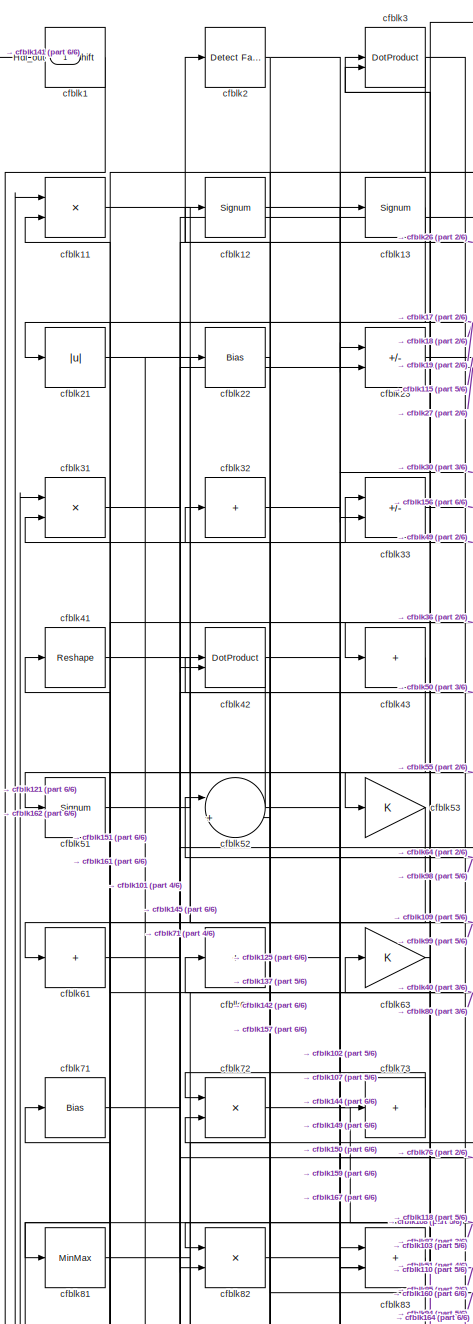
[diagram: root canvas - part 1/6, top left region]
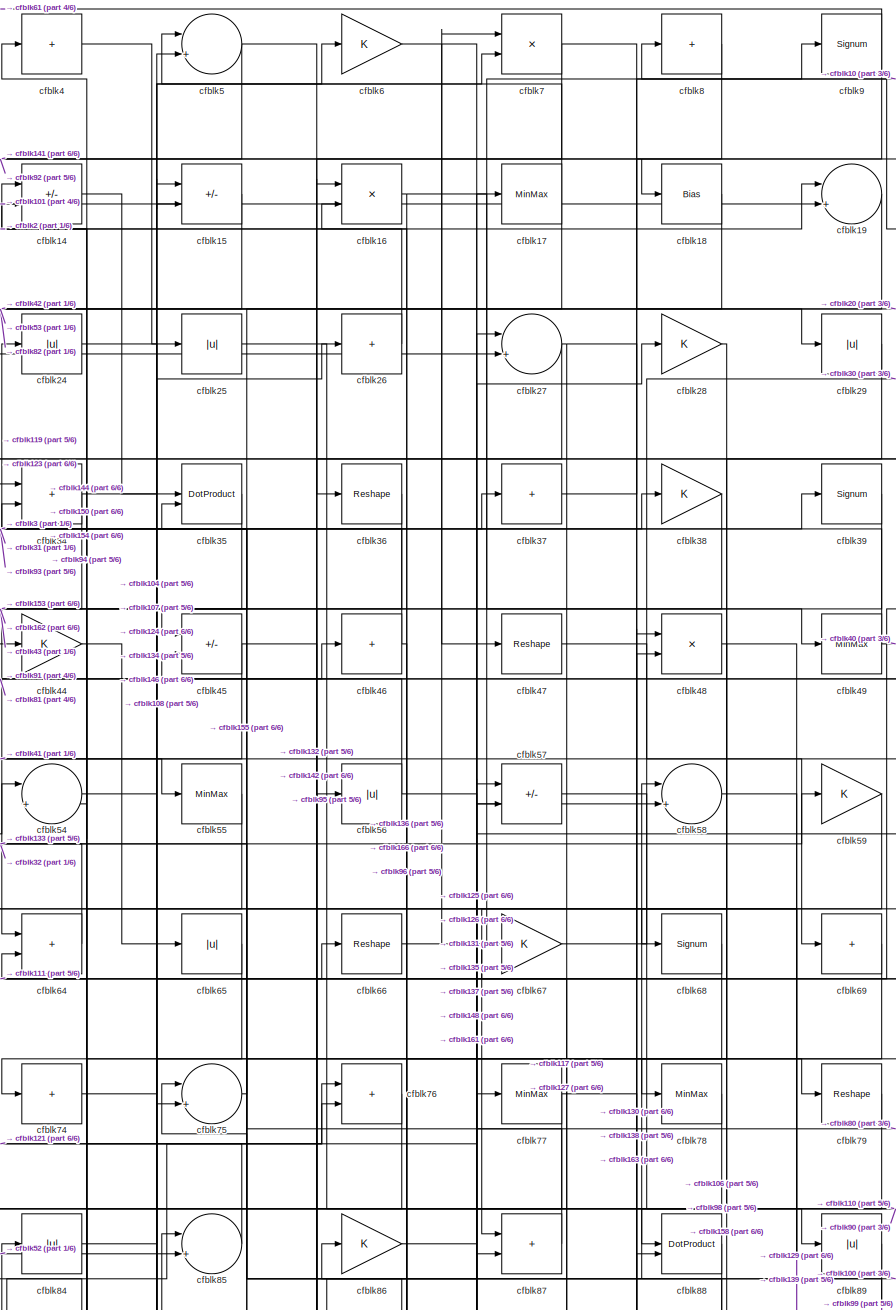
[diagram: root canvas - part 2/6, top center region]
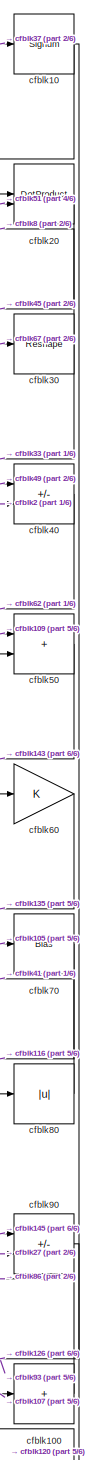
[diagram: root canvas - part 3/6, top right region]
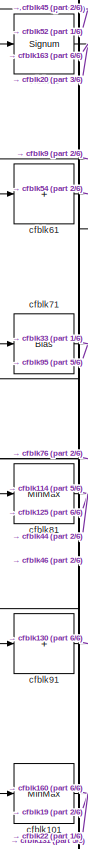
[diagram: root canvas - part 4/6, middle left region]
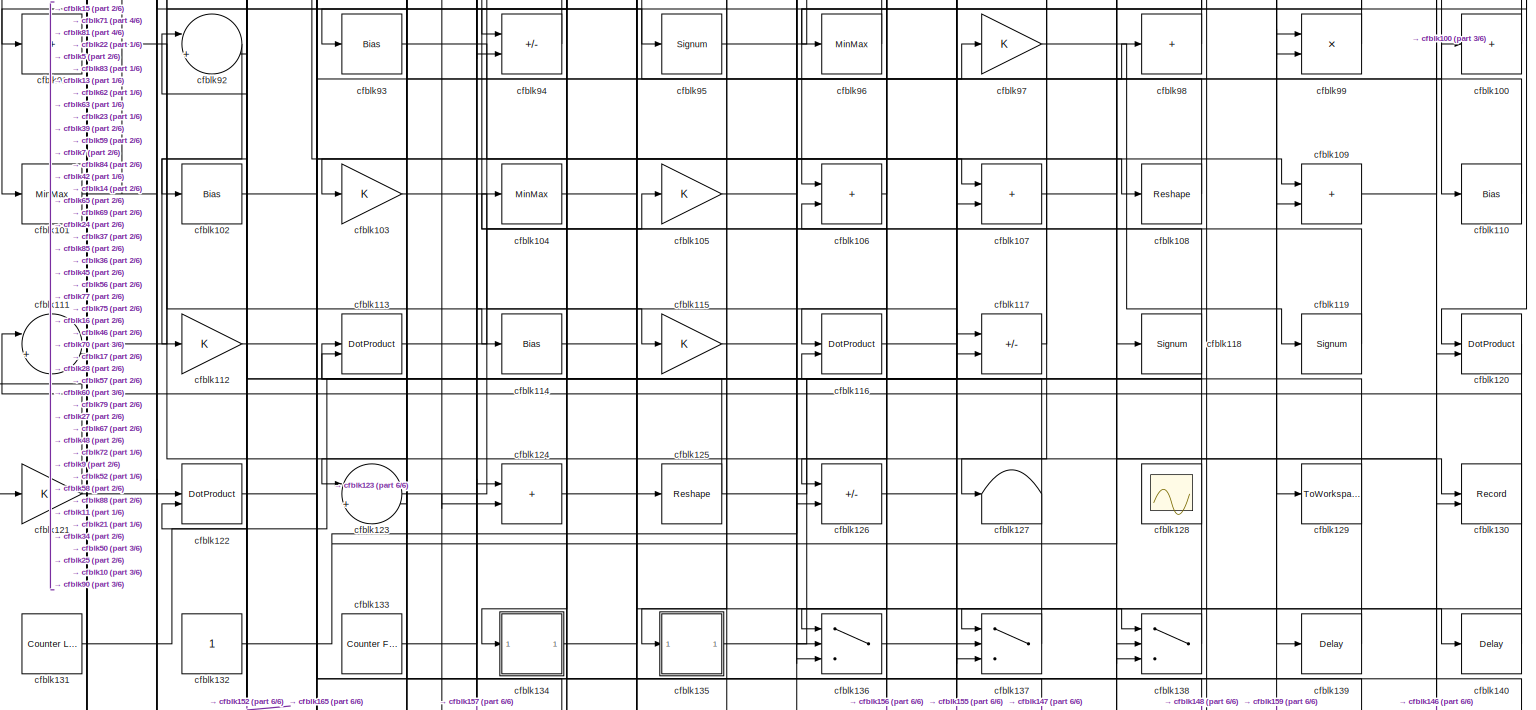
[diagram: root canvas - part 5/6, full width, bottom band]
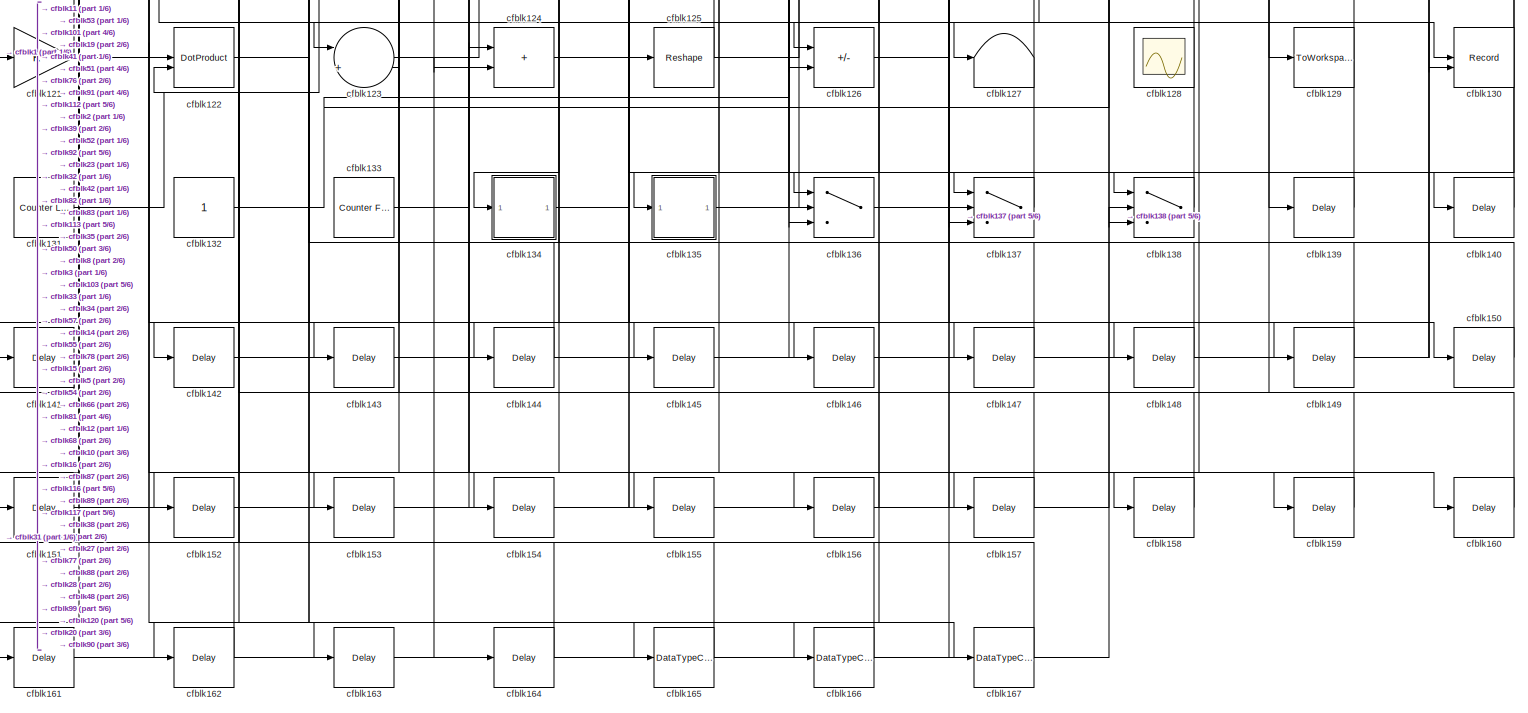
[diagram: root canvas - part 6/6, full width, bottom band]
MODEL slx_37937b42022f
KIND model
CONFIG AbsTol = auto
CONFIG EnableMultiTasking = off
CONFIG FixedStep = auto
CONFIG MaxStep = auto
CONFIG MinStep = auto
CONFIG RelTol = 1e-3
CONFIG SampleTimeConstraint = Unconstrained
CONFIG SolverName = VariableStepAuto
CONFIG StartTime = 0.0
CONFIG StopTime = 10.0
BLOCK [Outport] Hdl_out
  OutDataTypeStr = uint8
BLOCK [ArithShift] cfblk1
  BitShiftNumber = 8
  InputPortMap = u0
BLOCK [Signum] cfblk10
BLOCK [Sum] cfblk100
  IconShape = rectangular
  Inputs = +
  OutDataTypeStr = uint8
BLOCK [MinMax] cfblk101
  OutDataTypeStr = uint8
BLOCK [Bias] cfblk102
  Bias = 0.0
  SaturateOnIntegerOverflow = off
BLOCK [Gain] cfblk103
  OutDataTypeStr = uint8
BLOCK [MinMax] cfblk104
  OutDataTypeStr = uint8
BLOCK [Gain] cfblk105
  OutDataTypeStr = uint8
BLOCK [Sum] cfblk106
  IconShape = rectangular
  OutDataTypeStr = uint8
BLOCK [Sum] cfblk107
  IconShape = rectangular
  OutDataTypeStr = uint8
BLOCK [Reshape] cfblk108
BLOCK [Sum] cfblk109
  IconShape = rectangular
  OutDataTypeStr = uint8
BLOCK [Product] cfblk11
  Inputs = */
  OutDataTypeStr = uint8
  RndMeth = Zero
  SaturateOnIntegerOverflow = on
BLOCK [Bias] cfblk110
  Bias = 0.0
  SaturateOnIntegerOverflow = off
BLOCK [Sum] cfblk111
  Inputs = |++
  OutDataTypeStr = uint8
BLOCK [Gain] cfblk112
  OutDataTypeStr = uint8
BLOCK [DotProduct] cfblk113
  OutDataTypeStr = uint8
BLOCK [Bias] cfblk114
  Bias = 0.0
  SaturateOnIntegerOverflow = off
BLOCK [Gain] cfblk115
  OutDataTypeStr = uint8
BLOCK [DotProduct] cfblk116
  OutDataTypeStr = uint8
BLOCK [Sum] cfblk117
  IconShape = rectangular
  Inputs = +-
  OutDataTypeStr = uint8
BLOCK [Signum] cfblk118
BLOCK [Signum] cfblk119
BLOCK [Signum] cfblk12
BLOCK [DotProduct] cfblk120
  OutDataTypeStr = uint8
BLOCK [Gain] cfblk121
  OutDataTypeStr = uint8
BLOCK [DotProduct] cfblk122
  OutDataTypeStr = uint8
BLOCK [Sum] cfblk123
  Inputs = |++
  OutDataTypeStr = uint8
BLOCK [Sum] cfblk124
  IconShape = rectangular
  OutDataTypeStr = uint8
BLOCK [Reshape] cfblk125
BLOCK [Sum] cfblk126
  IconShape = rectangular
  Inputs = +-
  OutDataTypeStr = uint8
BLOCK [Terminator] cfblk127
BLOCK [Scope] cfblk128
  Floating = on
  NumInputPorts = 1
  ScopeSpecificationString = Simulink.scopes.TimeScopeBlockCfg('CurrentConfiguration', extmgr.ConfigurationSet(extmgr.Configuration('Core','General UI',true,'FigureColor',[0.156862745098039 0.156862745098039 0.156862745098039]),extmgr.Configuration('Core','Source UI',true),extmgr.Configuration('Sources','WiredSimulink',true,'DataLoggingVariableName','ScopeData1','DataLoggingSaveFormat','StructureWithTime','DataLoggingLimitDat...<+2713ch>
BLOCK [ToWorkspace] cfblk129
  MaxDataPoints = inf
  SampleTime = -1
  SaveFormat = Timeseries
  VariableName = simout
BLOCK [Signum] cfblk13
BLOCK [Record] cfblk130
  CompatibilityTag = XY
  FileSettingsInternal = {"entries":[{"content":{"excelSettings":{"content":{},"type":"Streamout.ExcelSettings"}},"type":"Streamout.FileSettingStorage","uuid":""}],"packageUris":["http:\/\/schema.mathworks.com\/mf0\/streamout_blocks\/R2020a"],"version":"1.0"}
  Layout = [1 1]
  SignalsInternal = {"entries":[{"content":{"signals":[{"content":{"blockPath":[],"dimensions":[1],"domain":"","lineColor":"#a2142f","plots":[1],"port":1,"signalID":55582,"signalName":"cfblk91"},"type":"RecordBlkView.Signal","uuid":""},{"content":{"blockPath":[],"dimensions":[1],"domain":"","lineColor":"#139fff","plots":[1],"port":2,"signalID":55585,"signalName":"cfblk77"},"type":"RecordBlkView.Signal","uuid":""}]},"...<+142ch>
  VisualizationBindings = {"xyplotplugin":{"info":[{"series":[{"bindingParametersList":[{"parameter":"X-Axis","signalID":55582,"signalName":"cfblk91"},{"parameter":"Y-Axis","signalID":55585,"signalName":"cfblk77"}],"seriesID":19874}],"subplotID":1}]}}
  st = -1
BLOCK [Reference] cfblk131  REF=hdlsllib/Sources/Counter
Limited
  SourceBlock = hdlsllib/Sources/Counter\nLimited
  SourceType = Counter Limited
BLOCK [Constant] cfblk132
  OutDataTypeStr = uint8
  SampleTime = -1
BLOCK [Reference] cfblk133  REF=hdlsllib/Sources/Counter
Free-Running
  SourceBlock = hdlsllib/Sources/Counter\nFree-Running
  SourceType = Counter Free-Running
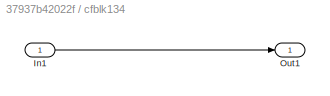
BLOCK [SubSystem] cfblk134
  LibrarySourceBlock = hdlsllib/Ports &\nSubsystems/Subsystem
BLOCK [Inport] cfblk134/In1
BLOCK [Outport] cfblk134/Out1
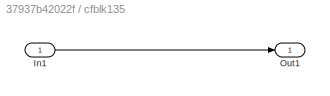
BLOCK [SubSystem] cfblk135
  LibrarySourceBlock = hdlsllib/Ports &\nSubsystems/Subsystem
BLOCK [Inport] cfblk135/In1
BLOCK [Outport] cfblk135/Out1
BLOCK [Switch] cfblk136
  InputSameDT = off
  OutDataTypeStr = uint8
  SaturateOnIntegerOverflow = off
BLOCK [Switch] cfblk137
  InputSameDT = off
  OutDataTypeStr = uint8
  SaturateOnIntegerOverflow = off
BLOCK [Switch] cfblk138
  InputSameDT = off
  OutDataTypeStr = uint8
  SaturateOnIntegerOverflow = off
BLOCK [Delay] cfblk139
  InputPortMap = u0
  SampleTime = 1
BLOCK [Sum] cfblk14
  IconShape = rectangular
  Inputs = +-
  OutDataTypeStr = uint8
BLOCK [Delay] cfblk140
  InputPortMap = u0
  SampleTime = 1
BLOCK [Delay] cfblk141
  InputPortMap = u0
  SampleTime = 1
BLOCK [Delay] cfblk142
  InputPortMap = u0
  SampleTime = 1
BLOCK [Delay] cfblk143
  InputPortMap = u0
  SampleTime = 1
BLOCK [Delay] cfblk144
  InputPortMap = u0
  SampleTime = 1
BLOCK [Delay] cfblk145
  InputPortMap = u0
  SampleTime = 1
BLOCK [Delay] cfblk146
  InputPortMap = u0
  SampleTime = 1
BLOCK [Delay] cfblk147
  InputPortMap = u0
  SampleTime = 1
BLOCK [Delay] cfblk148
  InputPortMap = u0
  SampleTime = 1
BLOCK [Delay] cfblk149
  InputPortMap = u0
  SampleTime = 1
BLOCK [Sum] cfblk15
  IconShape = rectangular
  Inputs = +-
  OutDataTypeStr = uint8
BLOCK [Delay] cfblk150
  InputPortMap = u0
  SampleTime = 1
BLOCK [Delay] cfblk151
  InputPortMap = u0
  SampleTime = 1
BLOCK [Delay] cfblk152
  InputPortMap = u0
  SampleTime = 1
BLOCK [Delay] cfblk153
  InputPortMap = u0
  SampleTime = 1
BLOCK [Delay] cfblk154
  InputPortMap = u0
  SampleTime = 1
BLOCK [Delay] cfblk155
  InputPortMap = u0
  SampleTime = 1
BLOCK [Delay] cfblk156
  InputPortMap = u0
  SampleTime = 1
BLOCK [Delay] cfblk157
  InputPortMap = u0
  SampleTime = 1
BLOCK [Delay] cfblk158
  InputPortMap = u0
  SampleTime = 1
BLOCK [Delay] cfblk159
  InputPortMap = u0
  SampleTime = 1
BLOCK [Product] cfblk16
  Inputs = */
  OutDataTypeStr = uint8
  RndMeth = Zero
  SaturateOnIntegerOverflow = on
BLOCK [Delay] cfblk160
  InputPortMap = u0
  SampleTime = 1
BLOCK [Delay] cfblk161
  InputPortMap = u0
  SampleTime = 1
BLOCK [Delay] cfblk162
  InputPortMap = u0
  SampleTime = 1
BLOCK [Delay] cfblk163
  InputPortMap = u0
  SampleTime = 1
BLOCK [Delay] cfblk164
  InputPortMap = u0
  SampleTime = 1
BLOCK [DataTypeConversion] cfblk165
  OutDataTypeStr = uint8
  RndMeth = Floor
  SaturateOnIntegerOverflow = off
BLOCK [DataTypeConversion] cfblk166
  OutDataTypeStr = uint8
  RndMeth = Floor
  SaturateOnIntegerOverflow = off
BLOCK [DataTypeConversion] cfblk167
  OutDataTypeStr = uint8
  RndMeth = Floor
  SaturateOnIntegerOverflow = off
BLOCK [MinMax] cfblk17
  OutDataTypeStr = uint8
BLOCK [Bias] cfblk18
  Bias = 0.0
  SaturateOnIntegerOverflow = off
BLOCK [Sum] cfblk19
  Inputs = |++
  OutDataTypeStr = uint8
BLOCK [Reference] cfblk2  REF=hdlsllib/Logic and Bit
Operations/Detect Fall
Negative
  SourceBlock = hdlsllib/Logic and Bit\nOperations/Detect Fall\nNegative
  SourceType = Detect Fall Negative
BLOCK [DotProduct] cfblk20
  OutDataTypeStr = uint8
BLOCK [Abs] cfblk21
  OutDataTypeStr = uint8
  SaturateOnIntegerOverflow = off
BLOCK [Bias] cfblk22
  Bias = 0.0
  SaturateOnIntegerOverflow = off
BLOCK [Sum] cfblk23
  IconShape = rectangular
  Inputs = +-
  OutDataTypeStr = uint8
BLOCK [Abs] cfblk24
  OutDataTypeStr = uint8
  SaturateOnIntegerOverflow = off
BLOCK [Abs] cfblk25
  OutDataTypeStr = uint8
  SaturateOnIntegerOverflow = off
BLOCK [Sum] cfblk26
  IconShape = rectangular
  Inputs = +
  OutDataTypeStr = uint8
BLOCK [Sum] cfblk27
  Inputs = |++
  OutDataTypeStr = uint8
BLOCK [Gain] cfblk28
  OutDataTypeStr = uint8
BLOCK [Abs] cfblk29
  OutDataTypeStr = uint8
  SaturateOnIntegerOverflow = off
BLOCK [DotProduct] cfblk3
  OutDataTypeStr = uint8
BLOCK [Reshape] cfblk30
BLOCK [Product] cfblk31
  Inputs = */
  OutDataTypeStr = uint8
  RndMeth = Zero
  SaturateOnIntegerOverflow = on
BLOCK [Sum] cfblk32
  IconShape = rectangular
  Inputs = +
  OutDataTypeStr = uint8
BLOCK [Sum] cfblk33
  IconShape = rectangular
  Inputs = +-
  OutDataTypeStr = uint8
BLOCK [Sum] cfblk34
  IconShape = rectangular
  OutDataTypeStr = uint8
BLOCK [DotProduct] cfblk35
  OutDataTypeStr = uint8
BLOCK [Reshape] cfblk36
BLOCK [Sum] cfblk37
  IconShape = rectangular
  Inputs = +
  OutDataTypeStr = uint8
BLOCK [Gain] cfblk38
  OutDataTypeStr = uint8
BLOCK [Signum] cfblk39
BLOCK [Sum] cfblk4
  IconShape = rectangular
  Inputs = +
  OutDataTypeStr = uint8
BLOCK [Sum] cfblk40
  IconShape = rectangular
  Inputs = +-
  OutDataTypeStr = uint8
BLOCK [Reshape] cfblk41
BLOCK [DotProduct] cfblk42
  OutDataTypeStr = uint8
BLOCK [Sum] cfblk43
  IconShape = rectangular
  Inputs = +
  OutDataTypeStr = uint8
BLOCK [Gain] cfblk44
  OutDataTypeStr = uint8
BLOCK [Sum] cfblk45
  IconShape = rectangular
  Inputs = +-
  OutDataTypeStr = uint8
BLOCK [Sum] cfblk46
  IconShape = rectangular
  Inputs = +
  OutDataTypeStr = uint8
BLOCK [Reshape] cfblk47
BLOCK [Product] cfblk48
  Inputs = */
  OutDataTypeStr = uint8
  RndMeth = Zero
  SaturateOnIntegerOverflow = on
BLOCK [MinMax] cfblk49
  OutDataTypeStr = uint8
BLOCK [Sum] cfblk5
  Inputs = |++
  OutDataTypeStr = uint8
BLOCK [Sum] cfblk50
  IconShape = rectangular
  OutDataTypeStr = uint8
BLOCK [Signum] cfblk51
BLOCK [Sum] cfblk52
  Inputs = |++
  OutDataTypeStr = uint8
BLOCK [Gain] cfblk53
  OutDataTypeStr = uint8
BLOCK [Sum] cfblk54
  Inputs = |++
  OutDataTypeStr = uint8
BLOCK [MinMax] cfblk55
  OutDataTypeStr = uint8
BLOCK [Abs] cfblk56
  OutDataTypeStr = uint8
  SaturateOnIntegerOverflow = off
BLOCK [Sum] cfblk57
  IconShape = rectangular
  Inputs = +-
  OutDataTypeStr = uint8
BLOCK [Sum] cfblk58
  Inputs = |++
  OutDataTypeStr = uint8
BLOCK [Gain] cfblk59
  OutDataTypeStr = uint8
BLOCK [Gain] cfblk6
  OutDataTypeStr = uint8
BLOCK [Gain] cfblk60
  OutDataTypeStr = uint8
BLOCK [Sum] cfblk61
  IconShape = rectangular
  Inputs = +
  OutDataTypeStr = uint8
BLOCK [Sum] cfblk62
  IconShape = rectangular
  Inputs = +
  OutDataTypeStr = uint8
BLOCK [Gain] cfblk63
  OutDataTypeStr = uint8
BLOCK [Sum] cfblk64
  IconShape = rectangular
  OutDataTypeStr = uint8
BLOCK [Abs] cfblk65
  OutDataTypeStr = uint8
  SaturateOnIntegerOverflow = off
BLOCK [Reshape] cfblk66
BLOCK [Gain] cfblk67
  OutDataTypeStr = uint8
BLOCK [Signum] cfblk68
BLOCK [Sum] cfblk69
  IconShape = rectangular
  Inputs = +
  OutDataTypeStr = uint8
BLOCK [Product] cfblk7
  Inputs = */
  OutDataTypeStr = uint8
  RndMeth = Zero
  SaturateOnIntegerOverflow = on
BLOCK [Bias] cfblk70
  Bias = 0.0
  SaturateOnIntegerOverflow = off
BLOCK [Bias] cfblk71
  Bias = 0.0
  SaturateOnIntegerOverflow = off
BLOCK [Product] cfblk72
  Inputs = */
  OutDataTypeStr = uint8
  RndMeth = Zero
  SaturateOnIntegerOverflow = on
BLOCK [Sum] cfblk73
  IconShape = rectangular
  Inputs = +
  OutDataTypeStr = uint8
BLOCK [Sum] cfblk74
  IconShape = rectangular
  Inputs = +
  OutDataTypeStr = uint8
BLOCK [Sum] cfblk75
  Inputs = |++
  OutDataTypeStr = uint8
BLOCK [Sum] cfblk76
  IconShape = rectangular
  OutDataTypeStr = uint8
BLOCK [MinMax] cfblk77
  OutDataTypeStr = uint8
BLOCK [MinMax] cfblk78
  OutDataTypeStr = uint8
BLOCK [Reshape] cfblk79
BLOCK [Sum] cfblk8
  IconShape = rectangular
  Inputs = +
  OutDataTypeStr = uint8
BLOCK [Abs] cfblk80
  OutDataTypeStr = uint8
  SaturateOnIntegerOverflow = off
BLOCK [MinMax] cfblk81
  OutDataTypeStr = uint8
BLOCK [Product] cfblk82
  Inputs = */
  OutDataTypeStr = uint8
  RndMeth = Zero
  SaturateOnIntegerOverflow = on
BLOCK [Sum] cfblk83
  IconShape = rectangular
  OutDataTypeStr = uint8
BLOCK [Abs] cfblk84
  OutDataTypeStr = uint8
  SaturateOnIntegerOverflow = off
BLOCK [Sum] cfblk85
  Inputs = |++
  OutDataTypeStr = uint8
BLOCK [Gain] cfblk86
  OutDataTypeStr = uint8
BLOCK [Sum] cfblk87
  IconShape = rectangular
  OutDataTypeStr = uint8
BLOCK [DotProduct] cfblk88
  OutDataTypeStr = uint8
BLOCK [Abs] cfblk89
  OutDataTypeStr = uint8
  SaturateOnIntegerOverflow = off
BLOCK [Signum] cfblk9
BLOCK [Sum] cfblk90
  IconShape = rectangular
  Inputs = +-
  OutDataTypeStr = uint8
BLOCK [Sum] cfblk91
  IconShape = rectangular
  Inputs = +
  OutDataTypeStr = uint8
BLOCK [Sum] cfblk92
  Inputs = |++
  OutDataTypeStr = uint8
BLOCK [Bias] cfblk93
  Bias = 0.0
  SaturateOnIntegerOverflow = off
BLOCK [Sum] cfblk94
  IconShape = rectangular
  Inputs = +-
  OutDataTypeStr = uint8
BLOCK [Signum] cfblk95
BLOCK [MinMax] cfblk96
  OutDataTypeStr = uint8
BLOCK [Gain] cfblk97
  OutDataTypeStr = uint8
BLOCK [Sum] cfblk98
  IconShape = rectangular
  Inputs = +
  OutDataTypeStr = uint8
BLOCK [Product] cfblk99
  Inputs = */
  OutDataTypeStr = uint8
  RndMeth = Zero
  SaturateOnIntegerOverflow = on
LINE cfblk100:1 -> cfblk86:1
NET cfblk101:1 -> cfblk160:1, cfblk19:2, cfblk22:1
LINE cfblk102:1 -> cfblk13:1
NET cfblk103:1 -> cfblk117:2, cfblk157:1
LINE cfblk104:1 -> cfblk37:1
LINE cfblk105:1 -> cfblk70:1
LINE cfblk106:1 -> cfblk16:2
LINE cfblk107:1 -> cfblk100:1
LINE cfblk108:1 -> cfblk85:1
LINE cfblk109:1 -> cfblk50:1
NET cfblk10:1 -> cfblk126:2, cfblk93:1
LINE cfblk110:1 -> cfblk63:1
LINE cfblk111:1 -> cfblk48:1
NET cfblk112:1 -> cfblk152:1, cfblk97:1
NET cfblk113:1 -> cfblk105:1, cfblk123:2
LINE cfblk114:1 -> cfblk140:1
LINE cfblk115:1 -> cfblk98:1
LINE cfblk116:1 -> cfblk60:1
LINE cfblk117:1 -> cfblk67:1
NET cfblk118:1 -> cfblk104:1, cfblk113:1
LINE cfblk119:1 -> cfblk84:1
LINE cfblk11:1 -> cfblk99:2
LINE cfblk120:1 -> cfblk137:1
NET cfblk121:1 -> cfblk11:1, cfblk19:1, cfblk76:2
LINE cfblk122:1 -> cfblk165:1
NET cfblk123:1 -> cfblk124:2, cfblk57:2
NET cfblk124:1 -> cfblk147:1, cfblk66:1
NET cfblk125:1 -> cfblk12:1, cfblk87:2
LINE cfblk126:1 -> cfblk38:1
LINE cfblk12:1 -> cfblk73:1
NET cfblk131:1 -> cfblk57:1, cfblk71:1
NET cfblk132:1 -> cfblk48:2, cfblk56:1
LINE cfblk133:1 -> cfblk59:1
LINE cfblk134/In1:1 -> cfblk134/Out1:1
LINE cfblk134:1 -> cfblk75:2
LINE cfblk135/In1:1 -> cfblk135/Out1:1
LINE cfblk135:1 -> cfblk17:1
LINE cfblk136:1 -> cfblk28:1
LINE cfblk137:1 -> cfblk72:2
LINE cfblk138:1 -> cfblk14:1
LINE cfblk139:1 -> cfblk106:2
LINE cfblk13:1 -> cfblk21:1
LINE cfblk140:1 -> cfblk111:1
LINE cfblk141:1 -> cfblk1:1
LINE cfblk142:1 -> cfblk16:1
LINE cfblk143:1 -> cfblk20:1
LINE cfblk144:1 -> cfblk83:1
LINE cfblk145:1 -> cfblk90:1
LINE cfblk146:1 -> cfblk120:2
LINE cfblk147:1 -> cfblk117:1
LINE cfblk148:1 -> cfblk113:2
LINE cfblk149:1 -> cfblk23:1
LINE cfblk14:1 -> cfblk35:1
LINE cfblk150:1 -> cfblk14:2
LINE cfblk151:1 -> cfblk124:1
LINE cfblk152:1 -> cfblk138:2
LINE cfblk153:1 -> cfblk5:2
LINE cfblk154:1 -> cfblk15:1
LINE cfblk155:1 -> cfblk137:2
LINE cfblk156:1 -> cfblk116:2
LINE cfblk157:1 -> cfblk52:2
LINE cfblk158:1 -> cfblk34:1
LINE cfblk159:1 -> cfblk99:1
LINE cfblk15:1 -> cfblk111:2
LINE cfblk160:1 -> cfblk3:2
LINE cfblk161:1 -> cfblk27:1
LINE cfblk162:1 -> cfblk31:1
LINE cfblk163:1 -> cfblk88:2
LINE cfblk164:1 -> cfblk11:2
LINE cfblk165:1 -> cfblk92:1
LINE cfblk166:1 -> cfblk122:1
LINE cfblk167:1 -> cfblk122:2
NET cfblk16:1 -> cfblk136:1, cfblk49:1
NET cfblk17:1 -> cfblk5:1, cfblk82:2
LINE cfblk18:1 -> cfblk42:2
LINE cfblk19:1 -> cfblk53:1
NET cfblk1:1 -> Hdl_out:1, cfblk121:1
LINE cfblk20:1 -> cfblk45:1
LINE cfblk21:1 -> cfblk109:2
LINE cfblk22:1 -> cfblk102:1
LINE cfblk23:1 -> cfblk115:1
LINE cfblk24:1 -> cfblk107:1
LINE cfblk25:1 -> cfblk110:1
LINE cfblk26:1 -> cfblk2:1
NET cfblk27:1 -> cfblk127:1, cfblk136:3, cfblk90:2
LINE cfblk28:1 -> cfblk158:1
NET cfblk29:1 -> cfblk68:1, cfblk78:1
NET cfblk2:1 -> cfblk142:1, cfblk40:2
NET cfblk30:1 -> cfblk33:2, cfblk8:1
LINE cfblk31:1 -> cfblk27:2
LINE cfblk32:1 -> cfblk167:1
LINE cfblk33:1 -> cfblk156:1
NET cfblk34:1 -> cfblk15:2, cfblk7:2, cfblk91:1
NET cfblk35:1 -> cfblk153:1, cfblk64:1
NET cfblk36:1 -> cfblk136:2, cfblk43:1
LINE cfblk37:1 -> cfblk10:1
LINE cfblk38:1 -> cfblk54:2
LINE cfblk39:1 -> cfblk162:1
NET cfblk3:1 -> cfblk164:1, cfblk23:2
LINE cfblk40:1 -> cfblk62:1
NET cfblk41:1 -> cfblk145:1, cfblk55:1
NET cfblk42:1 -> cfblk149:1, cfblk150:1, cfblk151:1
LINE cfblk43:1 -> cfblk83:2
NET cfblk44:1 -> cfblk65:1, cfblk74:1
NET cfblk45:1 -> cfblk138:1, cfblk81:1
NET cfblk46:1 -> cfblk24:1, cfblk96:1
LINE cfblk47:1 -> cfblk69:1
NET cfblk48:1 -> cfblk129:1, cfblk88:1
NET cfblk49:1 -> cfblk3:1, cfblk40:1
LINE cfblk4:1 -> cfblk25:1
LINE cfblk50:1 -> cfblk143:1
NET cfblk51:1 -> cfblk163:1, cfblk20:2
NET cfblk52:1 -> cfblk51:1, cfblk85:2
LINE cfblk53:1 -> cfblk161:1
NET cfblk54:1 -> cfblk146:1, cfblk26:1
LINE cfblk55:1 -> cfblk144:1
NET cfblk56:1 -> cfblk45:2, cfblk58:2
LINE cfblk57:1 -> cfblk89:1
LINE cfblk58:1 -> cfblk139:1
LINE cfblk59:1 -> cfblk87:1
NET cfblk5:1 -> cfblk36:1, cfblk92:2
LINE cfblk60:1 -> cfblk135:1
LINE cfblk61:1 -> cfblk54:1
NET cfblk62:1 -> cfblk107:2, cfblk50:2
LINE cfblk63:1 -> cfblk103:1
LINE cfblk64:1 -> cfblk32:1
LINE cfblk65:1 -> cfblk134:1
NET cfblk66:1 -> cfblk7:1, cfblk9:1
LINE cfblk67:1 -> cfblk30:1
LINE cfblk68:1 -> cfblk155:1
LINE cfblk69:1 -> cfblk94:1
NET cfblk6:1 -> cfblk148:1, cfblk47:1
LINE cfblk70:1 -> cfblk116:1
NET cfblk71:1 -> cfblk33:1, cfblk95:1
LINE cfblk72:1 -> cfblk118:1
LINE cfblk73:1 -> cfblk72:1
LINE cfblk74:1 -> cfblk79:1
LINE cfblk75:1 -> cfblk35:2
LINE cfblk76:1 -> cfblk101:1
NET cfblk77:1 -> cfblk130:2, cfblk166:1
LINE cfblk78:1 -> cfblk154:1
LINE cfblk79:1 -> cfblk137:3
NET cfblk7:1 -> cfblk29:1, cfblk94:2
LINE cfblk80:1 -> cfblk41:1
NET cfblk81:1 -> cfblk114:1, cfblk125:1, cfblk44:1, cfblk46:1
NET cfblk82:1 -> cfblk159:1, cfblk76:1
LINE cfblk83:1 -> cfblk108:1
LINE cfblk84:1 -> cfblk6:1
NET cfblk85:1 -> cfblk4:1, cfblk64:2
LINE cfblk86:1 -> cfblk80:1
NET cfblk87:1 -> cfblk31:2, cfblk82:1
LINE cfblk88:1 -> cfblk106:1
LINE cfblk89:1 -> cfblk126:1
NET cfblk8:1 -> cfblk123:1, cfblk141:1, cfblk18:1
LINE cfblk90:1 -> cfblk120:1
LINE cfblk91:1 -> cfblk130:1
LINE cfblk92:1 -> cfblk112:1
NET cfblk93:1 -> cfblk109:1, cfblk39:1
LINE cfblk94:1 -> cfblk42:1
LINE cfblk95:1 -> cfblk77:1
LINE cfblk96:1 -> cfblk75:1
LINE cfblk97:1 -> cfblk119:1
NET cfblk98:1 -> cfblk52:1, cfblk58:1
LINE cfblk99:1 -> cfblk34:2
NET cfblk9:1 -> cfblk138:3, cfblk61:1
note: NET lines group one-source signal fan-out (src -> all destinations, sorted); 1:1 wires keep LINE
